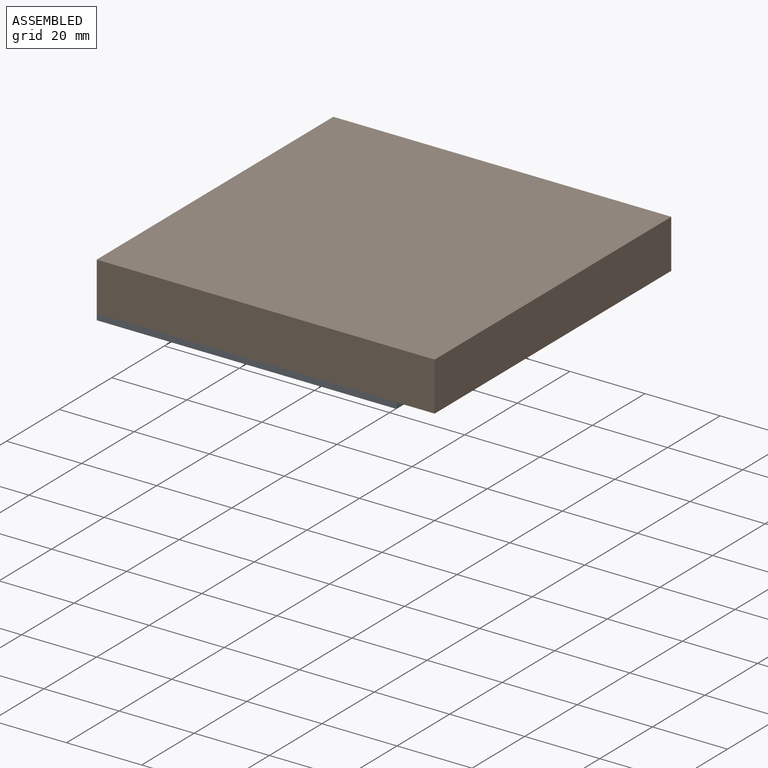
[diagram: assembled view]
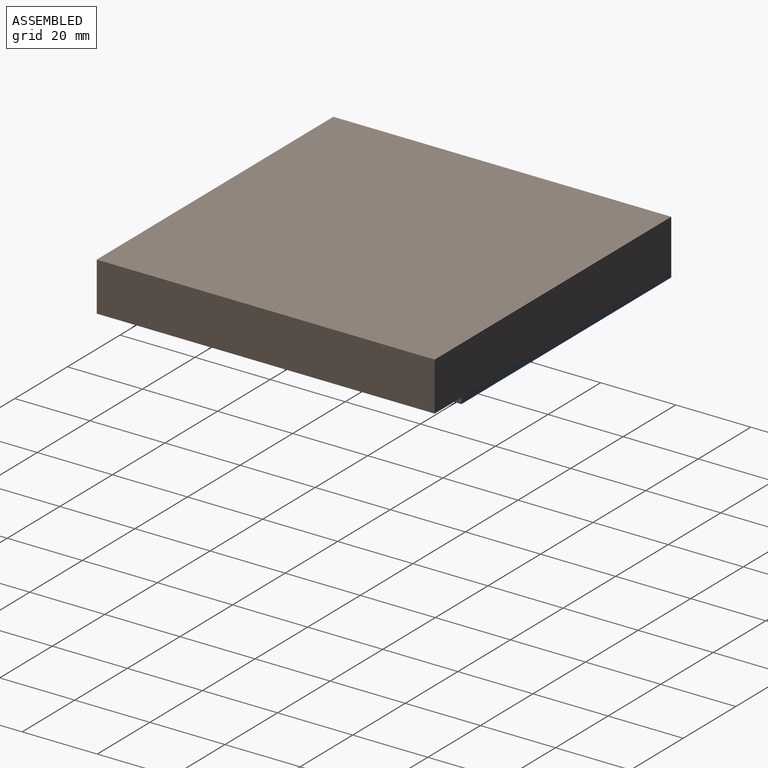
[diagram: assembled view, second angle]
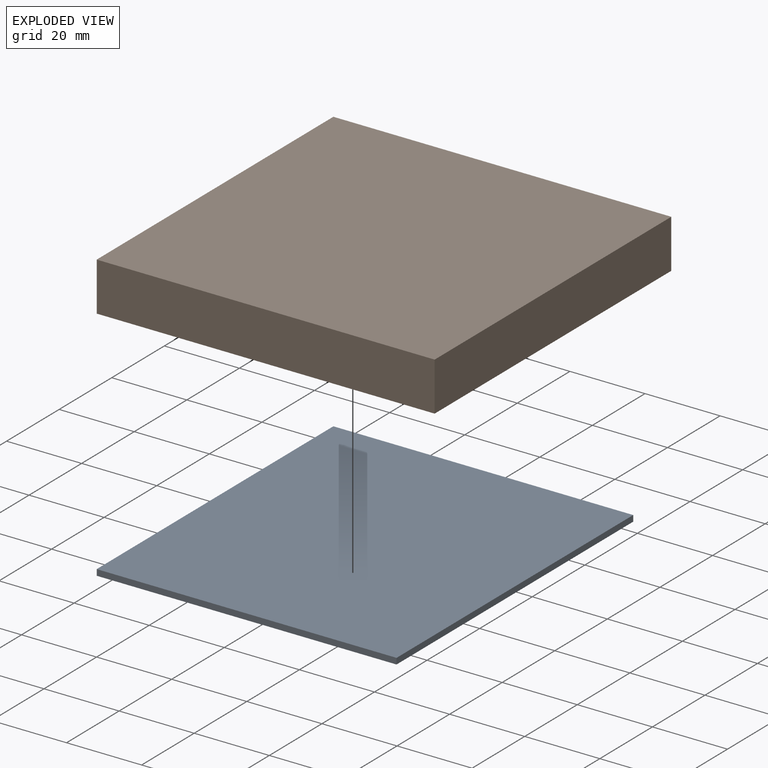
[diagram: exploded view]
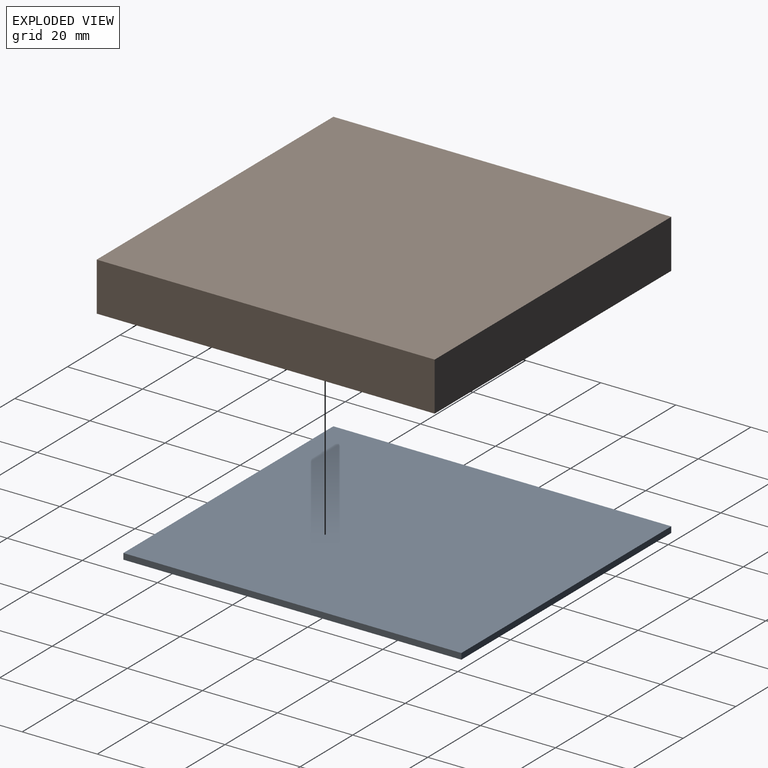
[diagram: exploded view, second angle]
ASSEMBLY  parts=2 mates=3
PART A: 11 faces, bbox 79.9x90x2.1 mm
  f0: plane 79.85x1.6mm, normal (0,1,0), area 127.8mm2, adj f1,f3,f4,f5
  f1: plane 90x1.6mm, normal (-1,0,0), area 144mm2, adj f0,f2,f4,f5
  f2: plane 79.85x1.6mm, normal (0,-1,0), area 127.8mm2, adj f1,f3,f4,f5
  f3: plane 90x1.6mm, normal (1,0,0), area 144mm2, adj f0,f2,f4,f5
  f4: plane 90x79.85mm, normal (0,0,1), area 7186.6mm2, adj f0,f1,f2,f3
  f5: plane 90x79.85mm, normal (0,0,-1), area 7150.6mm2, adj f0,f1,f2,f3,f6,f7,f8,f9
  f6: plane 6x0.5mm, normal (1,0,0), area 3mm2, adj f5,f7,f9,f10
  f7: plane 6x0.5mm, normal (0,-1,0), area 3mm2, adj f5,f6,f8,f10
  f8: plane 6x0.5mm, normal (-1,0,0), area 3mm2, adj f5,f7,f9,f10
  f9: plane 6x0.5mm, normal (0,1,0), area 3mm2, adj f5,f6,f8,f10
  f10: plane 6x6mm, normal (0,0,-1), area 36mm2, adj f6,f7,f8,f9
PART B: 6 faces, bbox 90x90x13 mm
  f0: plane 90x13mm, normal (0,1,0), area 1170mm2, adj f1,f3,f4,f5
  f1: plane 90x13mm, normal (-1,0,0), area 1170mm2, adj f0,f2,f4,f5
  f2: plane 90x13mm, normal (0,-1,0), area 1170mm2, adj f1,f3,f4,f5
  f3: plane 90x13mm, normal (1,0,0), area 1170mm2, adj f0,f2,f4,f5
  f4: plane 90x90mm, normal (0,0,1), area 8100mm2, adj f0,f1,f2,f3
  f5: plane 90x90mm, normal (0,0,-1), area 8100mm2, adj f0,f1,f2,f3
PLACE A t=(-21.12,-44.9,7.72)mm
PLACE B t=(-16.05,-44.9,9.32)mm
MATE planar A.f4 <-> B.f5  axis (0,0,1) through (-21.12,-44.9,9.32)mm
MATE planar B.f1 <-> A.f1  axis (-1,0,0) through (-61.05,-44.9,15.82)mm
MATE planar B.f2 <-> A.f2  axis (0,-1,0) through (-16.05,-89.9,15.82)mm
